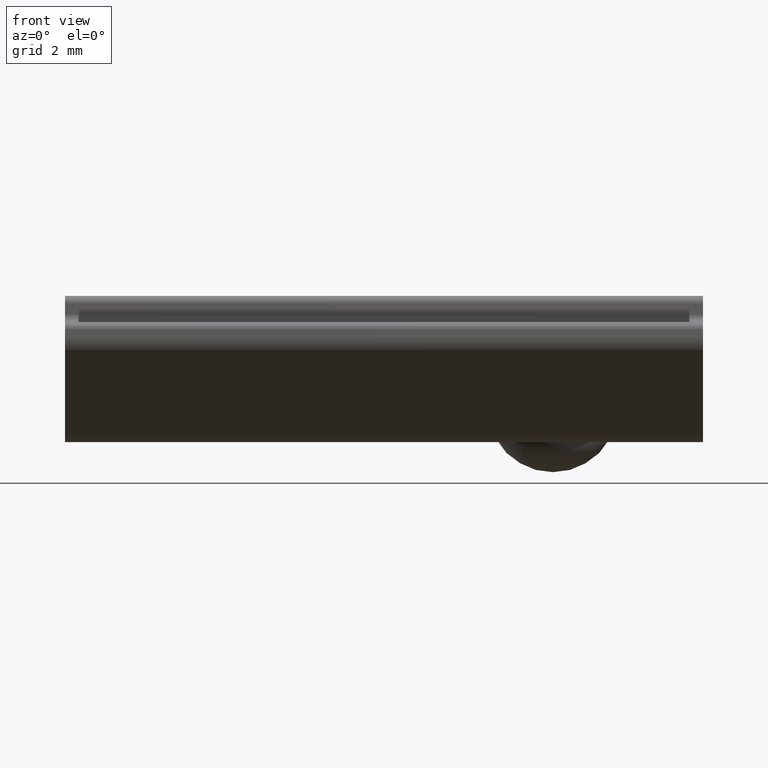
[diagram: clean part render]
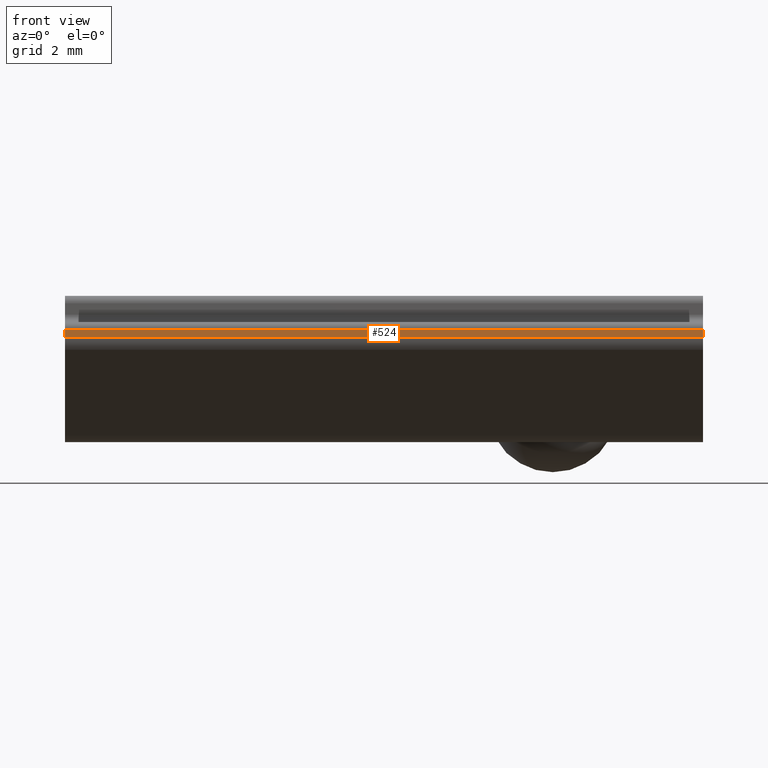
[diagram: same view with one face highlighted and labeled with its STEP entity id]
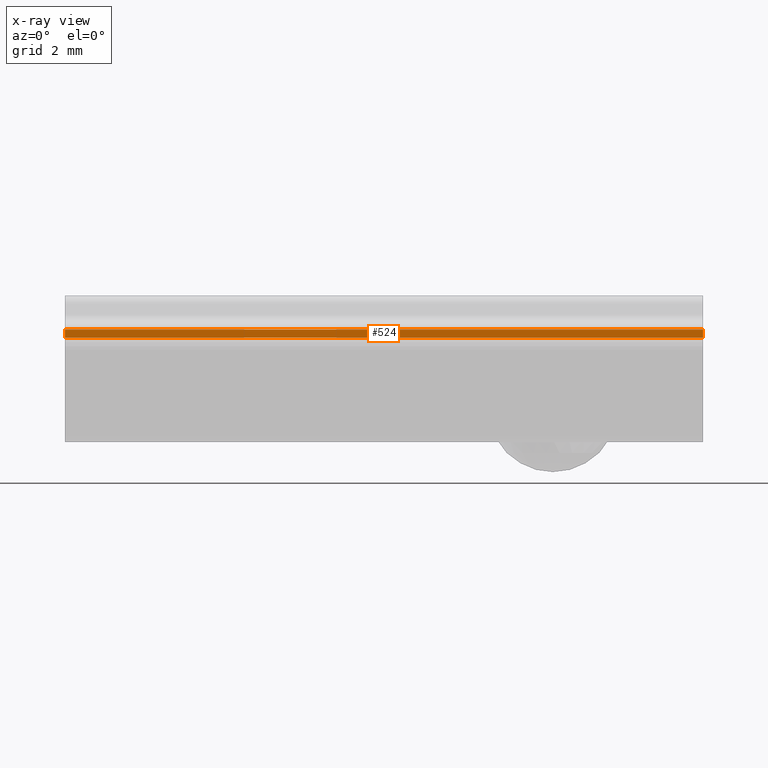
[diagram: x-ray of the same camera — body ghosted, the highlighted face saturated]
A machine part, front view. The second image highlights one B-rep face of the part: STEP entity #524.
The next image is the same camera in x-ray: the body ghosted, the highlighted face saturated — about 0% of this face is hidden behind the body in this view.
In plain terms, the highlighted planar face has unit normal (0, 1, 0).
Its self-contained STEP definition (entity closure, byte-faithful):
#40=FACE_OUTER_BOUND('',#69,.T.);
#69=EDGE_LOOP('',(#377,#378,#379,#380));
#103=LINE('',#843,#149);
#104=LINE('',#847,#150);
#105=LINE('',#849,#151);
#106=LINE('',#850,#152);
#149=VECTOR('',#662,1000.);
#150=VECTOR('',#667,1000.);
#151=VECTOR('',#668,1000.);
#152=VECTOR('',#669,1000.);
#231=VERTEX_POINT('',#840);
#232=VERTEX_POINT('',#842);
#233=VERTEX_POINT('',#846);
#234=VERTEX_POINT('',#848);
#290=EDGE_CURVE('',#232,#231,#103,.T.);
#292=EDGE_CURVE('',#231,#233,#104,.T.);
#293=EDGE_CURVE('',#234,#233,#105,.T.);
#294=EDGE_CURVE('',#232,#234,#106,.T.);
#377=ORIENTED_EDGE('',*,*,#292,.T.);
#378=ORIENTED_EDGE('',*,*,#293,.F.);
#379=ORIENTED_EDGE('',*,*,#294,.F.);
#380=ORIENTED_EDGE('',*,*,#290,.T.);
#508=PLANE('',#576);
#524=ADVANCED_FACE('',(#40),#508,.F.);
#576=AXIS2_PLACEMENT_3D('',#845,#665,#666);
#662=DIRECTION('',(1.,0.,2.22044604925031E-16));
#665=DIRECTION('center_axis',(0.,1.,0.));
#666=DIRECTION('ref_axis',(-1.,0.,-2.22044604925031E-16));
#667=DIRECTION('',(-2.22044604925031E-16,0.,1.));
#668=DIRECTION('',(1.,0.,2.22044604925031E-16));
#669=DIRECTION('',(-2.22044604925031E-16,0.,1.));
#840=CARTESIAN_POINT('',(-0.799999999999997,-4.15,-4.91801488286691));
#842=CARTESIAN_POINT('',(-17.8,-4.15,-4.91801488286691));
#843=CARTESIAN_POINT('',(-17.8,-4.15,-4.91801488286691));
#845=CARTESIAN_POINT('Origin',(-17.8,-4.15,-4.91801488286691));
#846=CARTESIAN_POINT('',(-0.799999999999997,-4.15,-4.70000000000001));
#847=CARTESIAN_POINT('',(-0.799999999999997,-4.15,-4.91801488286691));
#848=CARTESIAN_POINT('',(-17.8,-4.15,-4.70000000000001));
#849=CARTESIAN_POINT('',(-17.8,-4.15,-4.70000000000001));
#850=CARTESIAN_POINT('',(-17.8,-4.15,-4.91801488286691));